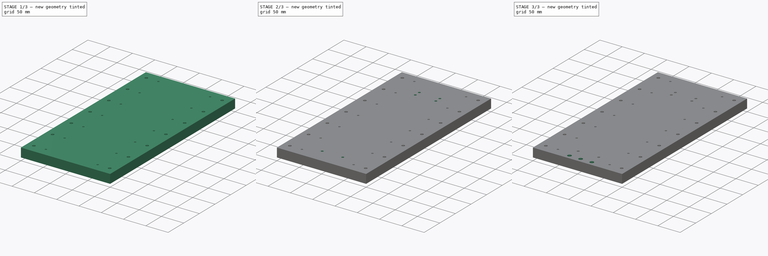
[diagram: build sequence overview — one tinted view per stage of 3, left to right]
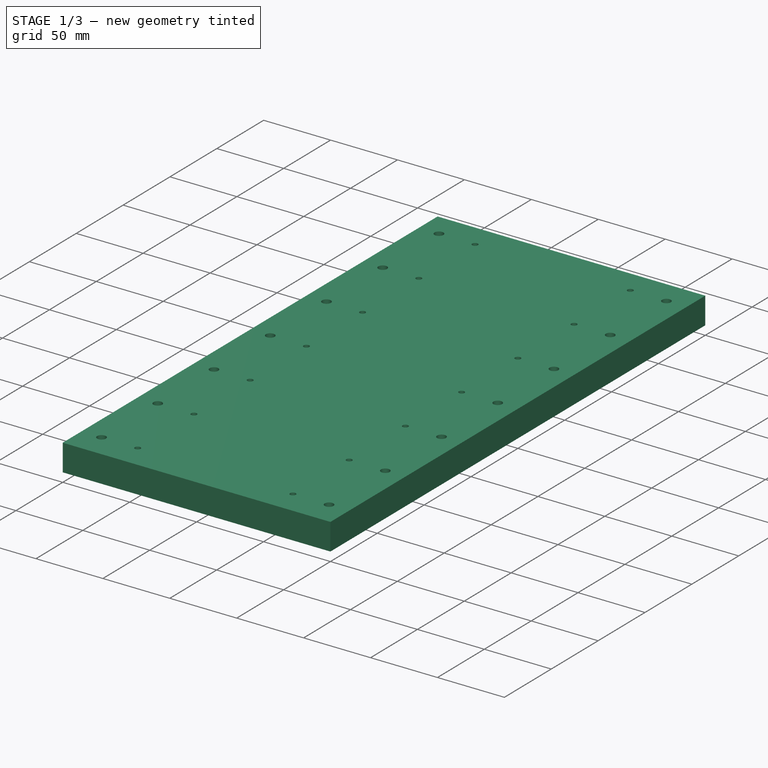
[diagram: stage 1 of 3 — iso view after this stage's code; geometry added in this stage tinted green]
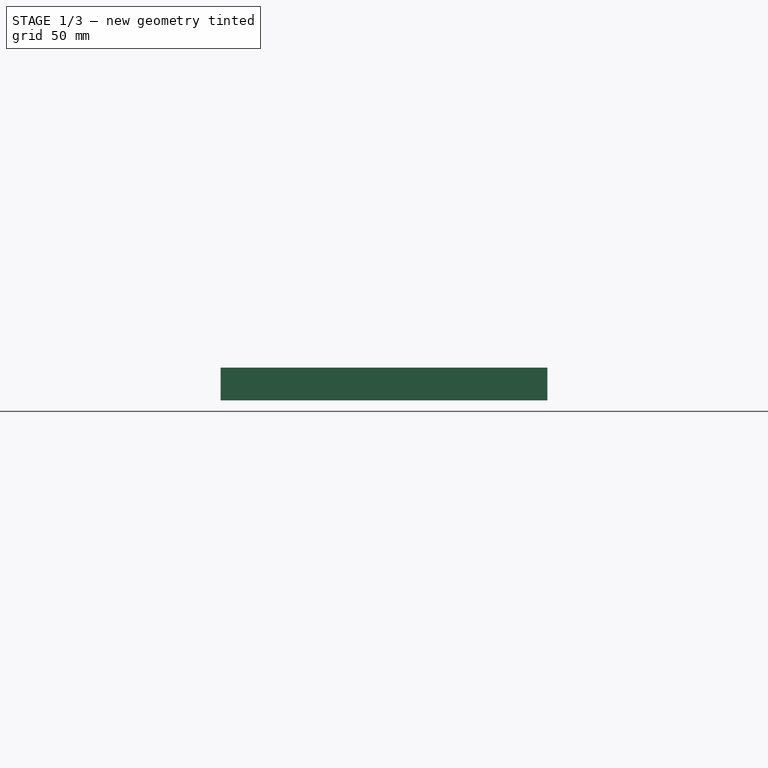
[diagram: stage 1 of 3 — front view after this stage's code; geometry added in this stage tinted green]
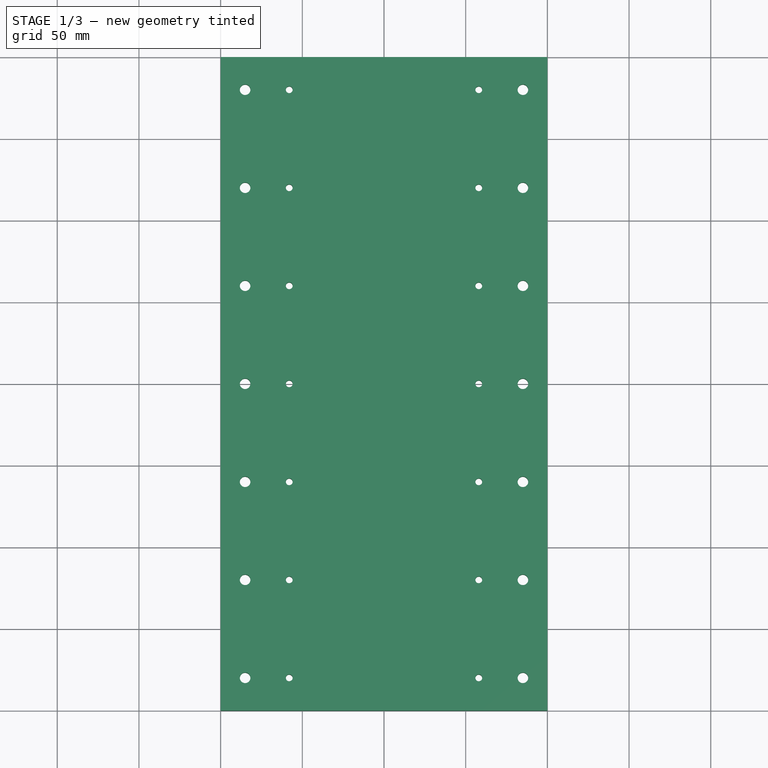
[diagram: stage 1 of 3 — top view after this stage's code; geometry added in this stage tinted green]
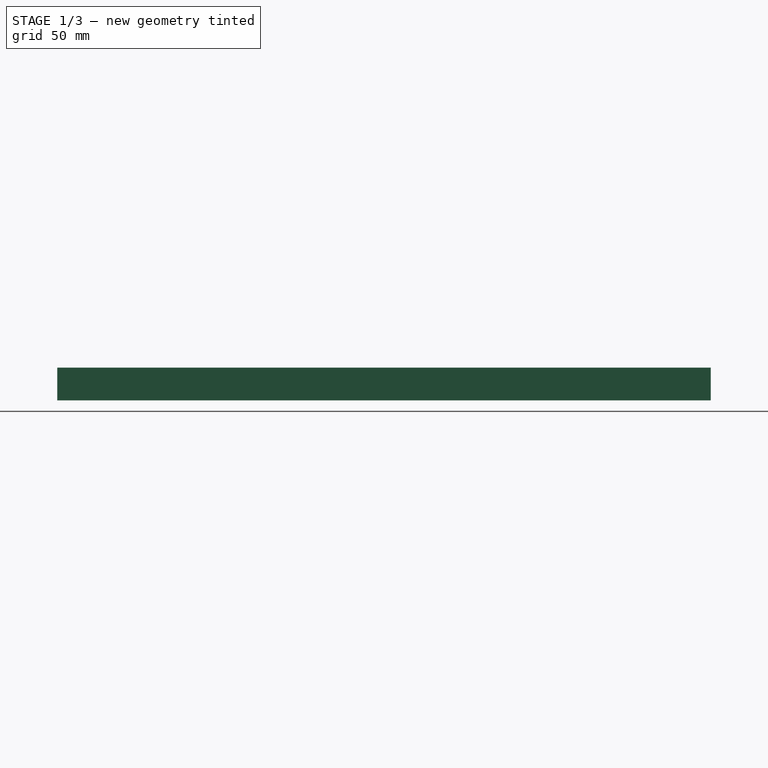
[diagram: stage 1 of 3 — right view after this stage's code; geometry added in this stage tinted green]
FCSTD DOCUMENT  (FreeCAD 0.17R9796 (Git))
Label: zschlitten
License: All rights reserved
LicenseURL: http://en.wikipedia.org/wiki/All_rights_reserved
objects: Sketcher::SketchObject×8, PartDesign::Pocket×7, PartDesign::Pad×1, PartDesign::Body×1
note: 25 computed .brp shape members not serialized (recipe doc carries the construction recipe); baked Part::Feature solids carry a one-line shape summary decoded from their .brp

FEATURE [Sketcher::SketchObject] Sketch
  MapMode = 5
  Support = -> [XY_Plane]
  sketch-geometry (4):
    g0: LineSegment StartX=0 StartY=400 StartZ=0 EndX=200 EndY=400 EndZ=0
    g1: LineSegment StartX=200 StartY=400 StartZ=0 EndX=200 EndY=0 EndZ=0
    g2: LineSegment StartX=200 StartY=0 StartZ=0 EndX=0 EndY=0 EndZ=0
    g3: LineSegment StartX=0 StartY=0 StartZ=0 EndX=0 EndY=400 EndZ=0
  constraints (11):
    c: Coincident(g0,g1)
    c: Coincident(g1,g2)
    c: Coincident(g2,g3)
    c: Coincident(g3,g0)
    c: Horizontal(g0)
    c: Horizontal(g2)
    c: Vertical(g1)
    c: Vertical(g3)
    c: Coincident(g2,g-1)
    c: DistanceY(g-1,g0) = 400
    c: DistanceX(g-1,g1) = 200
FEATURE [PartDesign::Pad] Pad
  Length = 20
  Length2 = 100
  Profile = -> Sketch
  Type = 0
FEATURE [Sketcher::SketchObject] Sketch001
  MapMode = 5
  Placement = pos=(0,0,20) rot=(0,0,1;0rad)
  Support = -> [Pad]
  sketch-geometry (14):
    g0: Circle CenterX=42 CenterY=380 CenterZ=0 NormalX=0 NormalY=0 NormalZ=1 Radius=2.1
    g1: Circle CenterX=42 CenterY=320 CenterZ=0 NormalX=0 NormalY=0 NormalZ=1 Radius=2.1
    g2: Circle CenterX=42 CenterY=260 CenterZ=0 NormalX=0 NormalY=0 NormalZ=1 Radius=2.1
    g3: Circle CenterX=42 CenterY=200 CenterZ=0 NormalX=0 NormalY=0 NormalZ=1 Radius=2.1
    g4: Circle CenterX=42 CenterY=140 CenterZ=0 NormalX=0 NormalY=0 NormalZ=1 Radius=2.1
    g5: Circle CenterX=42 CenterY=80 CenterZ=0 NormalX=0 NormalY=0 NormalZ=1 Radius=2.1
    g6: Circle CenterX=42 CenterY=20 CenterZ=0 NormalX=0 NormalY=0 NormalZ=1 Radius=2.1
    g7: Circle CenterX=158 CenterY=380 CenterZ=0 NormalX=0 NormalY=0 NormalZ=1 Radius=2.1
    g8: Circle CenterX=158 CenterY=320 CenterZ=0 NormalX=0 NormalY=0 NormalZ=1 Radius=2.1
    g9: Circle CenterX=158 CenterY=260 CenterZ=0 NormalX=0 NormalY=0 NormalZ=1 Radius=2.1
    g10: Circle CenterX=158 CenterY=200 CenterZ=0 NormalX=0 NormalY=0 NormalZ=1 Radius=2.1
    g11: Circle CenterX=158 CenterY=140 CenterZ=0 NormalX=0 NormalY=0 NormalZ=1 Radius=2.1
    g12: Circle CenterX=158 CenterY=80 CenterZ=0 NormalX=0 NormalY=0 NormalZ=1 Radius=2.1
    g13: Circle CenterX=158 CenterY=20 CenterZ=0 NormalX=0 NormalY=0 NormalZ=1 Radius=2.1
  constraints (37):
    c: DistanceX(g-1,g6) = 42
    c: DistanceY(g-1,g6) = 20
    c: DistanceY(g6,g13) = 0
    c: DistanceX(g-1,g13) = 158
    c: DistanceX(g5,g6) = 0
    c: DistanceX(g4,g5) = 0
    c: DistanceX(g3,g4) = 0
    c: DistanceX(g2,g3) = 0
    c: DistanceX(g1,g2) = 0
    c: DistanceX(g0,g1) = 0
    c: DistanceY(g-1,g5) = 80
    c: DistanceY(g-1,g4) = 140
    c: DistanceY(g-1,g3) = 200
    c: DistanceY(g-1,g2) = 260
    c: DistanceY(g-1,g1) = 320
    c: DistanceY(g-1,g0) = 380
    c: DistanceY(g5,g12) = 0
    c: DistanceY(g4,g11) = 0
    c: DistanceY(g3,g10) = 0
    c: DistanceY(g2,g9) = 0
    c: DistanceY(g1,g8) = 0
    c: DistanceY(g0,g7) = 0
    c: DistanceX(g12,g13) = 0
    c: DistanceX(g11,g12) = 0
    c: DistanceX(g10,g11) = 0
    c: DistanceX(g9,g10) = 0
    c: DistanceX(g8,g9) = 0
    c: DistanceX(g7,g8) = 0
    c: Radius(g0) = 2.1
    c: Equal(g0, g1-g6) x6
    c: Equal(g0,g13)
    c: Equal(g0,g12)
    c: Equal(g0,g11)
    c: Equal(g0,g10)
    c: Equal(g0,g9)
    c: Equal(g0,g8)
    c: Equal(g0,g7)
FEATURE [PartDesign::Pocket] Pocket
  BaseFeature = -> Pad
  Length = 20
  Profile = -> Sketch001
  Type = 0
FEATURE [Sketcher::SketchObject] Sketch002
  MapMode = 5
  Placement = pos=(0,0,20) rot=(0,0,1;0rad)
  Support = -> [Pocket]
  sketch-geometry (14):
    g0: Circle CenterX=15 CenterY=380 CenterZ=0 NormalX=0 NormalY=0 NormalZ=1 Radius=3.25
    g1: Circle CenterX=15 CenterY=320 CenterZ=0 NormalX=0 NormalY=0 NormalZ=1 Radius=3.25
    g2: Circle CenterX=15 CenterY=260 CenterZ=0 NormalX=0 NormalY=0 NormalZ=1 Radius=3.25
    g3: Circle CenterX=15 CenterY=200 CenterZ=0 NormalX=0 NormalY=0 NormalZ=1 Radius=3.25
    g4: Circle CenterX=15 CenterY=140 CenterZ=0 NormalX=0 NormalY=0 NormalZ=1 Radius=3.25
    g5: Circle CenterX=15 CenterY=80 CenterZ=0 NormalX=0 NormalY=0 NormalZ=1 Radius=3.25
    g6: Circle CenterX=15 CenterY=20 CenterZ=0 NormalX=0 NormalY=0 NormalZ=1 Radius=3.25
    g7: Circle CenterX=185 CenterY=380 CenterZ=0 NormalX=0 NormalY=0 NormalZ=1 Radius=3.25
    g8: Circle CenterX=185 CenterY=320 CenterZ=0 NormalX=0 NormalY=0 NormalZ=1 Radius=3.25
    g9: Circle CenterX=185 CenterY=260 CenterZ=0 NormalX=0 NormalY=0 NormalZ=1 Radius=3.25
    g10: Circle CenterX=185 CenterY=200 CenterZ=0 NormalX=0 NormalY=0 NormalZ=1 Radius=3.25
    g11: Circle CenterX=185 CenterY=140 CenterZ=0 NormalX=0 NormalY=0 NormalZ=1 Radius=3.25
    g12: Circle CenterX=185 CenterY=80 CenterZ=0 NormalX=0 NormalY=0 NormalZ=1 Radius=3.25
    g13: Circle CenterX=185 CenterY=20 CenterZ=0 NormalX=0 NormalY=0 NormalZ=1 Radius=3.25
  constraints (37):
    c: DistanceY(g-1,g6) = 20
    c: DistanceX(g-1,g6) = 15
    c: DistanceY(g6,g13) = 0
    c: DistanceX(g-1,g13) = 185
    c: DistanceX(g5,g6) = 0
    c: DistanceX(g4,g5) = 0
    c: DistanceX(g3,g4) = 0
    c: DistanceX(g2,g3) = 0
    c: DistanceX(g1,g2) = 0
    c: DistanceX(g0,g1) = 0
    c: DistanceX(g12,g13) = 0
    c: DistanceX(g11,g12) = 0
    c: DistanceX(g10,g11) = 0
    c: DistanceX(g9,g10) = 0
    c: DistanceX(g8,g9) = 0
    c: DistanceX(g7,g8) = 0
    c: DistanceY(g-1,g5) = 80
    c: DistanceY(g-1,g4) = 140
    c: DistanceY(g-1,g3) = 200
    c: DistanceY(g-1,g2) = 260
    c: DistanceY(g-1,g1) = 320
    c: DistanceY(g-1,g0) = 380
    c: DistanceY(g5,g12) = 0
    c: DistanceY(g4,g11) = 0
    c: DistanceY(g3,g10) = 0
    c: DistanceY(g2,g9) = 0
    c: DistanceY(g1,g8) = 0
    c: DistanceY(g0,g7) = 0
    c: Radius(g0) = 3.25
    c: Equal(g0, g1-g6) x6
    c: Equal(g0,g13)
    c: Equal(g0,g12)
    c: Equal(g0,g11)
    c: Equal(g0,g10)
    c: Equal(g0,g9)
    c: Equal(g0,g8)
    c: Equal(g0,g7)
FEATURE [PartDesign::Pocket] Pocket001
  BaseFeature = -> Pocket
  Length = 20
  Profile = -> Sketch002
  Type = 0
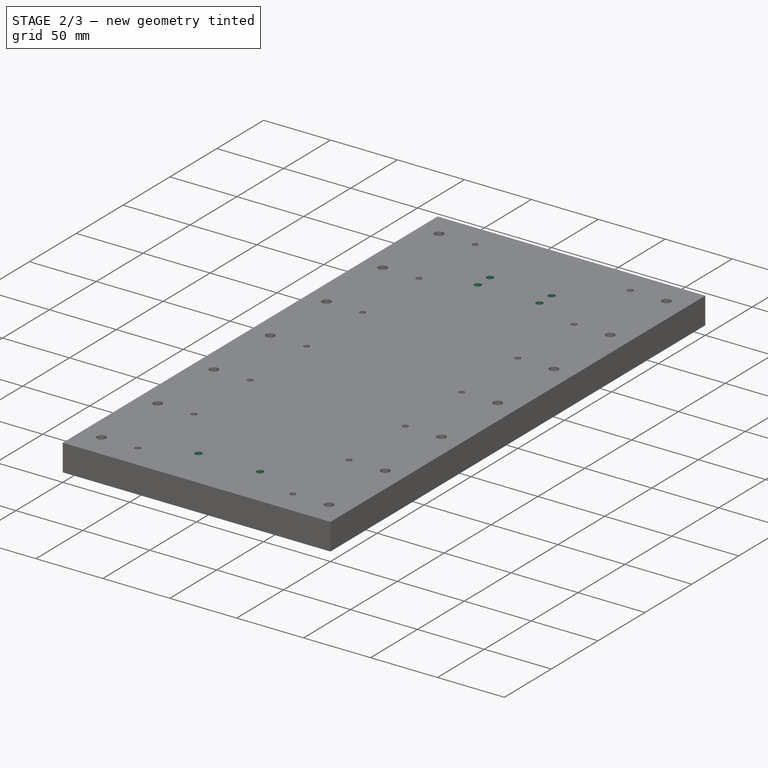
[diagram: stage 2 of 3 — iso view after this stage's code; geometry added in this stage tinted green]
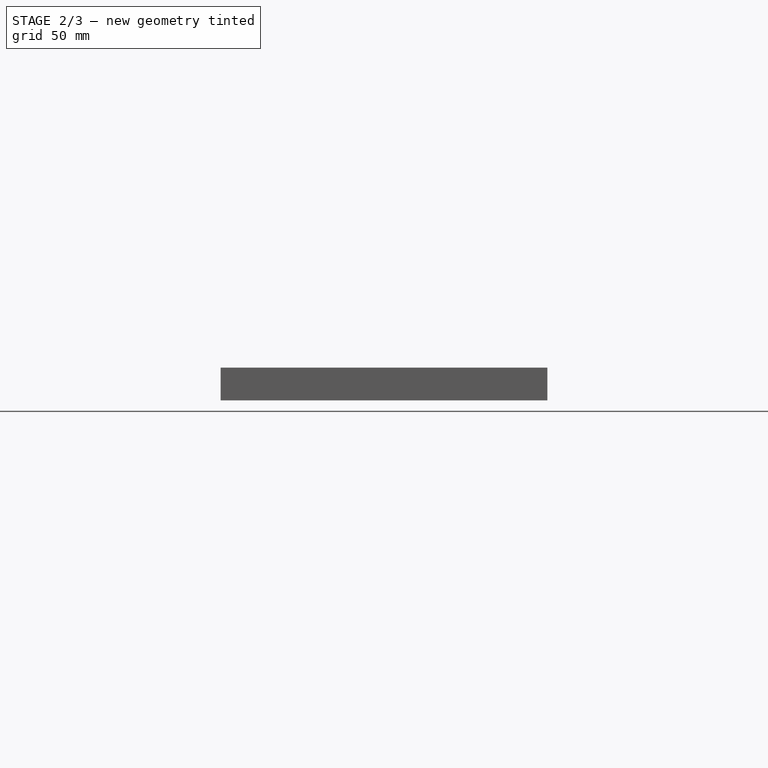
[diagram: stage 2 of 3 — front view after this stage's code; geometry added in this stage tinted green]
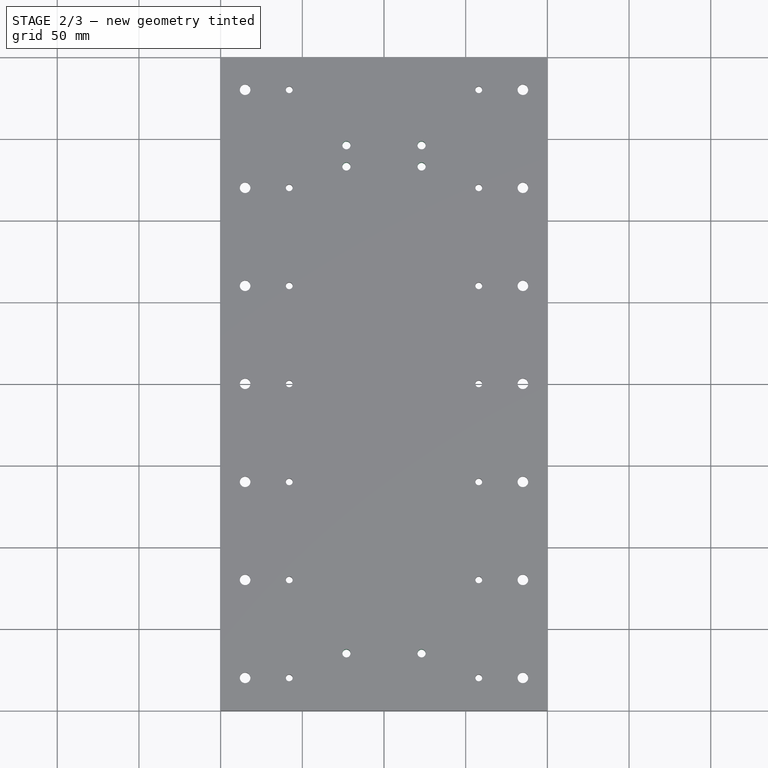
[diagram: stage 2 of 3 — top view after this stage's code; geometry added in this stage tinted green]
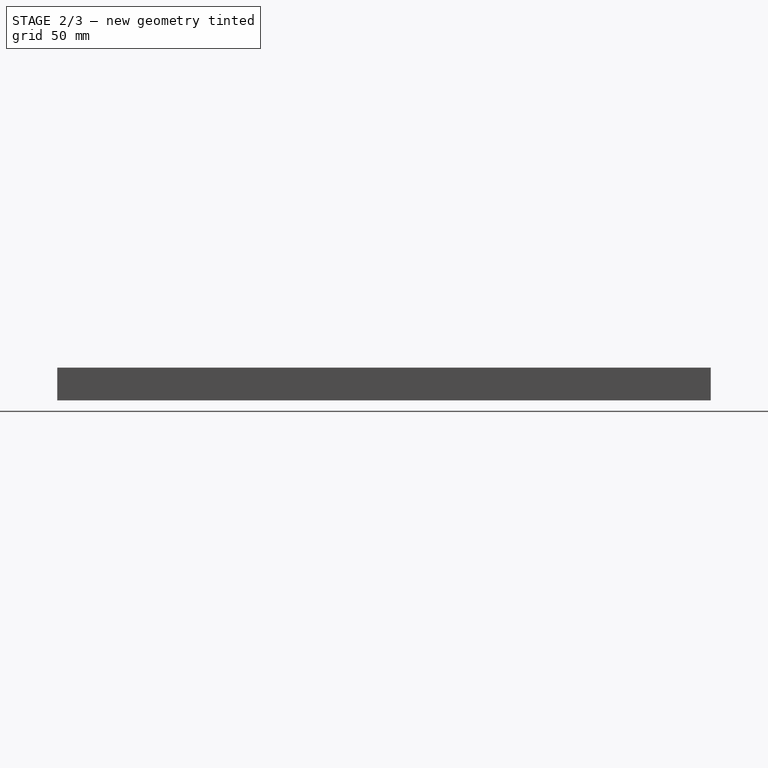
[diagram: stage 2 of 3 — right view after this stage's code; geometry added in this stage tinted green]
FEATURE [Sketcher::SketchObject] Sketch003
  MapMode = 5
  Placement = pos=(0,0,0) rot=(1,0,0;3.14159rad)
  Support = -> [Pocket001]
  sketch-geometry (14):
    g0: Circle CenterX=15 CenterY=-20 CenterZ=0 NormalX=0 NormalY=0 NormalZ=1 Radius=5.2
    g1: Circle CenterX=15 CenterY=-80 CenterZ=0 NormalX=0 NormalY=0 NormalZ=1 Radius=5.2
    g2: Circle CenterX=15 CenterY=-140 CenterZ=0 NormalX=0 NormalY=0 NormalZ=1 Radius=5.2
    g3: Circle CenterX=15 CenterY=-200 CenterZ=0 NormalX=0 NormalY=0 NormalZ=1 Radius=5.2
    g4: Circle CenterX=15 CenterY=-260 CenterZ=0 NormalX=0 NormalY=0 NormalZ=1 Radius=5.2
    g5: Circle CenterX=15 CenterY=-320 CenterZ=0 NormalX=0 NormalY=0 NormalZ=1 Radius=5.2
    g6: Circle CenterX=185 CenterY=-20 CenterZ=0 NormalX=0 NormalY=0 NormalZ=1 Radius=5.2
    g7: Circle CenterX=185 CenterY=-80 CenterZ=0 NormalX=0 NormalY=0 NormalZ=1 Radius=5.2
    g8: Circle CenterX=185 CenterY=-140 CenterZ=0 NormalX=0 NormalY=0 NormalZ=1 Radius=5.2
    g9: Circle CenterX=185 CenterY=-200 CenterZ=0 NormalX=0 NormalY=0 NormalZ=1 Radius=5.2
    g10: Circle CenterX=185 CenterY=-260 CenterZ=0 NormalX=0 NormalY=0 NormalZ=1 Radius=5.2
    g11: Circle CenterX=185 CenterY=-320 CenterZ=0 NormalX=0 NormalY=0 NormalZ=1 Radius=5.2
    g12: Circle CenterX=185 CenterY=-380 CenterZ=0 NormalX=0 NormalY=0 NormalZ=1 Radius=5.2
    g13: Circle CenterX=15 CenterY=-380 CenterZ=0 NormalX=0 NormalY=0 NormalZ=1 Radius=5.2
  constraints (37):
    c: DistanceY(g0,g-1) = 20
    c: DistanceY(g0,g6) = 0
    c: DistanceX(g-1,g0) = 15
    c: DistanceX(g-1,g6) = 185
    c: DistanceX(g0,g1) = 0
    c: DistanceX(g1,g2) = 0
    c: DistanceX(g2,g3) = 0
    c: DistanceX(g4,g5) = 0
    c: DistanceX(g7,g6) = 0
    c: DistanceX(g8,g7) = 0
    c: DistanceX(g9,g8) = 0
    c: DistanceX(g10,g9) = 0
    c: DistanceX(g11,g10) = 0
    c: DistanceX(g12,g11) = 0
    c: DistanceY(g1,g-1) = 80
    c: DistanceY(g2,g-1) = 140
    c: DistanceY(g3,g-1) = 200
    c: DistanceY(g4,g-1) = 260
    c: DistanceY(g5,g-1) = 320
    c: DistanceX(g13,g5) = 0
    c: DistanceY(g13,g-1) = 380
    c: DistanceY(g1,g7) = 0
    c: DistanceY(g2,g8) = 0
    c: DistanceY(g3,g9) = 0
    c: DistanceY(g4,g10) = 0
    c: DistanceY(g5,g11) = 0
    c: DistanceY(g13,g12) = 0
    c: Radius(g0) = 5.2
    c: Equal(g0, g1-g5) x5
    c: Equal(g0,g13)
    c: Equal(g0,g12)
    c: Equal(g0,g11)
    c: Equal(g0,g10)
    c: Equal(g0,g9)
    c: Equal(g0,g8)
    c: Equal(g0,g7)
    c: Equal(g0,g6)
FEATURE [PartDesign::Pocket] Pocket002
  BaseFeature = -> Pocket001
  Length = 7
  Profile = -> Sketch003
  Type = 0
FEATURE [Sketcher::SketchObject] Sketch004
  MapMode = 5
  Placement = pos=(0,0,20) rot=(0,0,1;0rad)
  Support = -> [Pocket002]
  sketch-geometry (6):
    g0: Circle CenterX=77 CenterY=346 CenterZ=0 NormalX=0 NormalY=0 NormalZ=1 Radius=2.5
    g1: Circle CenterX=123 CenterY=346 CenterZ=0 NormalX=0 NormalY=0 NormalZ=1 Radius=2.5
    g2: Circle CenterX=77 CenterY=333 CenterZ=0 NormalX=0 NormalY=0 NormalZ=1 Radius=2.5
    g3: Circle CenterX=123 CenterY=333 CenterZ=0 NormalX=0 NormalY=0 NormalZ=1 Radius=2.5
    g4: Circle CenterX=77 CenterY=35 CenterZ=0 NormalX=0 NormalY=0 NormalZ=1 Radius=2.5
    g5: Circle CenterX=123 CenterY=35 CenterZ=0 NormalX=0 NormalY=0 NormalZ=1 Radius=2.5
  constraints (18):
    c: DistanceX(g-1,g2) = 77
    c: DistanceX(g0,g2) = 0
    c: DistanceY(g-1,g2) = 333
    c: DistanceY(g2,g0) = 13
    c: DistanceY(g0,g1) = 0
    c: DistanceY(g3,g2) = 0
    c: DistanceX(g0,g1) = 46
    c: DistanceX(g3,g1) = 0
    c: Radius(g0) = 2.5
    c: Equal(g0,g2)
    c: Equal(g0,g1)
    c: Equal(g0,g3)
    c: DistanceX(g-1,g4) = 77
    c: DistanceY(g4,g5) = 0
    c: DistanceY(g-1,g4) = 35
    c: DistanceX(g4,g5) = 46
    c: Radius(g4) = 2.5
    c: Equal(g4,g5)
FEATURE [PartDesign::Pocket] Pocket003
  BaseFeature = -> Pocket002
  Length = 20
  Profile = -> Sketch004
  Type = 0
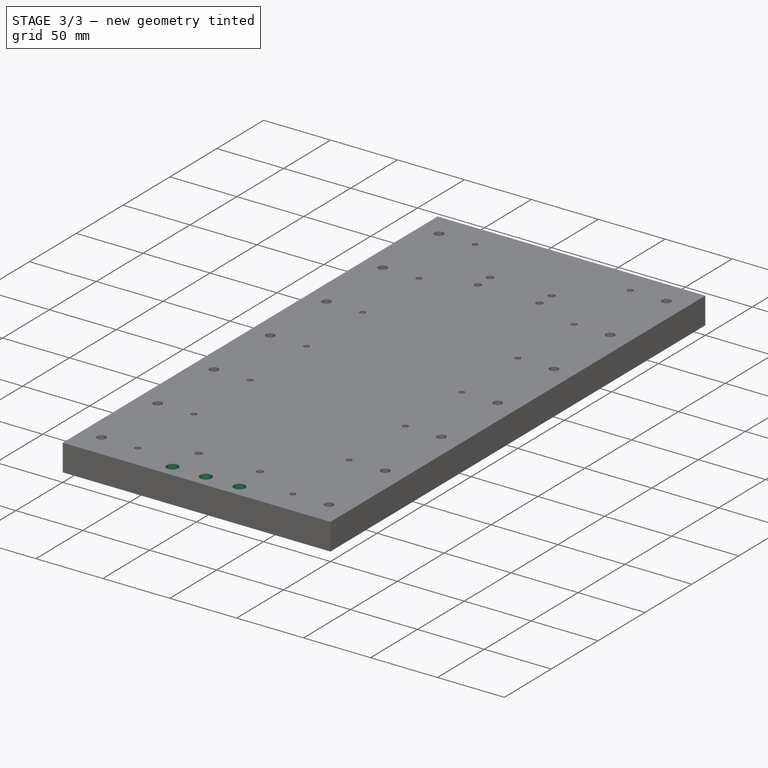
[diagram: stage 3 of 3 — iso view after this stage's code; geometry added in this stage tinted green]
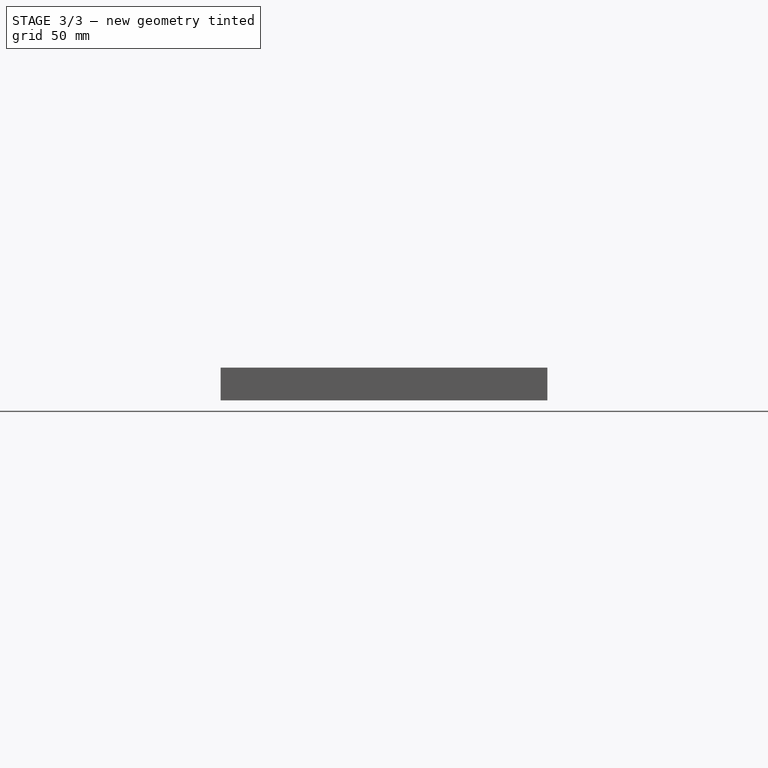
[diagram: stage 3 of 3 — front view after this stage's code; geometry added in this stage tinted green]
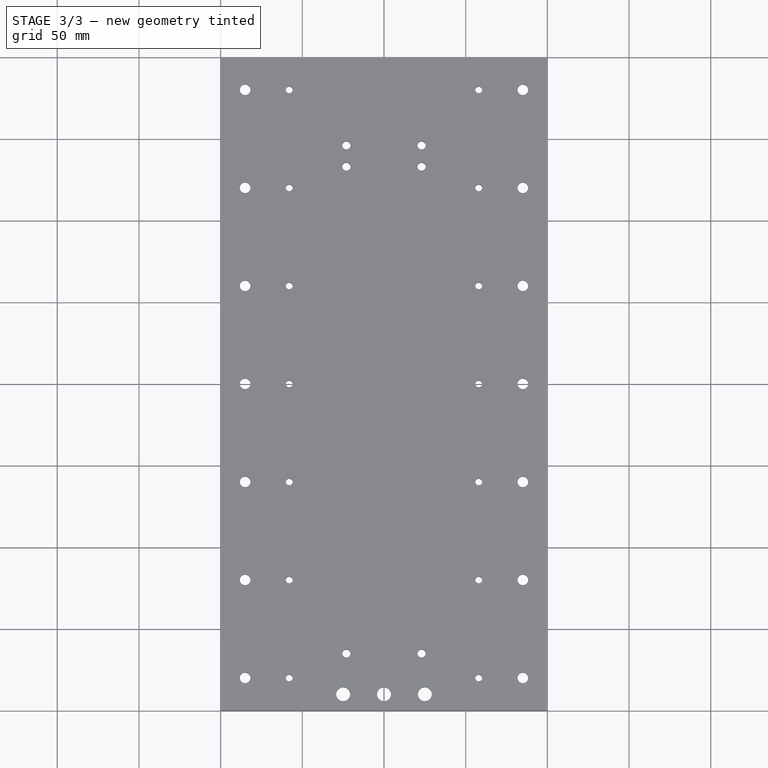
[diagram: stage 3 of 3 — top view after this stage's code; geometry added in this stage tinted green]
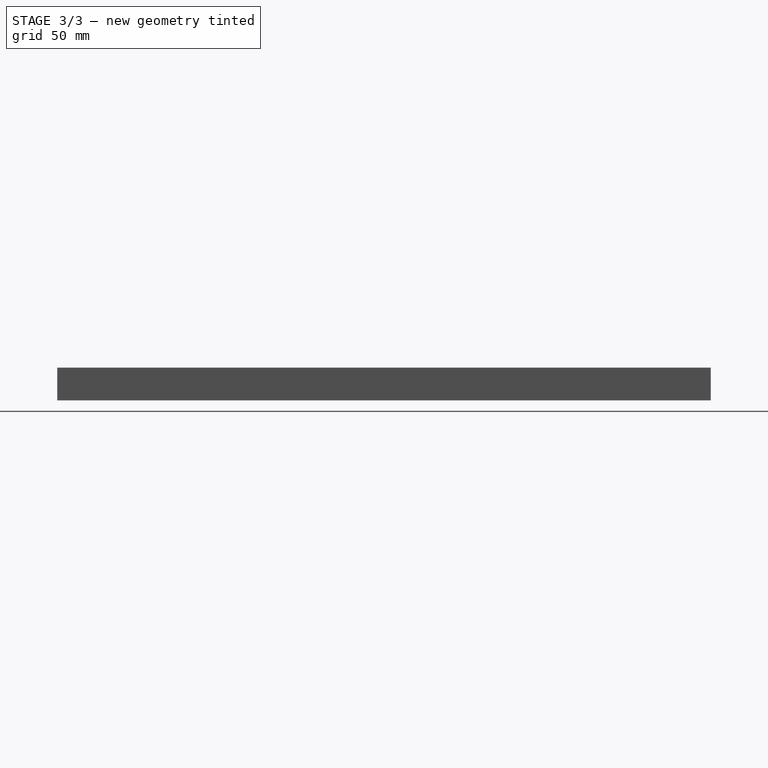
[diagram: stage 3 of 3 — right view after this stage's code; geometry added in this stage tinted green]
FEATURE [Sketcher::SketchObject] Sketch005
  MapMode = 5
  Placement = pos=(0,400,0) rot=(0,0.707107,0.707107;3.14159rad)
  Support = -> [Pocket003]
  sketch-geometry (4):
    g0: Circle CenterX=-170 CenterY=10 CenterZ=0 NormalX=0 NormalY=0 NormalZ=1 Radius=2.5
    g1: Circle CenterX=-123.33 CenterY=10 CenterZ=0 NormalX=0 NormalY=0 NormalZ=1 Radius=2.5
    g2: Circle CenterX=-76.67 CenterY=10 CenterZ=0 NormalX=0 NormalY=0 NormalZ=1 Radius=2.5
    g3: Circle CenterX=-30 CenterY=10 CenterZ=0 NormalX=0 NormalY=0 NormalZ=1 Radius=2.5
  constraints (12):
    c: DistanceY(g-1,g3) = 10
    c: DistanceX(g3,g-1) = 30
    c: DistanceX(g2,g-1) = 76.67
    c: DistanceX(g1,g-1) = 123.33
    c: DistanceX(g0,g-1) = 170
    c: DistanceY(g3,g2) = 0
    c: DistanceY(g2,g1) = 0
    c: DistanceY(g1,g0) = 0
    c: Radius(g0) = 2.5
    c: Equal(g0,g1)
    c: Equal(g0,g2)
    c: Equal(g0,g3)
FEATURE [PartDesign::Pocket] Pocket004
  BaseFeature = -> Pocket003
  Length = 20
  Profile = -> Sketch005
  Type = 0
FEATURE [Sketcher::SketchObject] Sketch006
  MapMode = 5
  Placement = pos=(0,0,20) rot=(0,0,1;0rad)
  Support = -> [Pocket004]
  sketch-geometry (3):
    g0: Circle CenterX=75 CenterY=10 CenterZ=0 NormalX=0 NormalY=0 NormalZ=1 Radius=4.25
    g1: Circle CenterX=100 CenterY=10 CenterZ=0 NormalX=0 NormalY=0 NormalZ=1 Radius=4.25
    g2: Circle CenterX=125 CenterY=10 CenterZ=0 NormalX=0 NormalY=0 NormalZ=1 Radius=4.25
  constraints (9):
    c: DistanceX(g-1,g1) = 100
    c: DistanceX(g0,g1) = 25
    c: DistanceX(g1,g2) = 25
    c: DistanceY(g-1,g0) = 10
    c: DistanceY(g0,g1) = 0
    c: DistanceY(g1,g2) = 0
    c: Radius(g0) = 4.25
    c: Equal(g0,g1)
    c: Equal(g0,g2)
FEATURE [PartDesign::Pocket] Pocket005
  BaseFeature = -> Pocket004
  Length = 20
  Profile = -> Sketch006
  Type = 0
FEATURE [Sketcher::SketchObject] Sketch007
  MapMode = 5
  Placement = pos=(0,0,0) rot=(1,0,0;3.14159rad)
  Support = -> [Pocket005]
  sketch-geometry (3):
    g0: Circle CenterX=75 CenterY=-10 CenterZ=0 NormalX=0 NormalY=0 NormalZ=1 Radius=7.5
    g1: Circle CenterX=100 CenterY=-10 CenterZ=0 NormalX=0 NormalY=0 NormalZ=1 Radius=7.5
    g2: Circle CenterX=125 CenterY=-10 CenterZ=0 NormalX=0 NormalY=0 NormalZ=1 Radius=7.5
  constraints (9):
    c: DistanceX(g-1,g0) = 75
    c: DistanceX(g0,g1) = 25
    c: DistanceX(g1,g2) = 25
    c: DistanceY(g1,g0) = 0
    c: DistanceY(g2,g1) = 0
    c: DistanceY(g0,g-1) = 10
    c: Radius(g0) = 7.5
    c: Equal(g0,g1)
    c: Equal(g0,g2)
FEATURE [PartDesign::Pocket] Pocket006
  BaseFeature = -> Pocket005
  Length = 9
  Profile = -> Sketch007
  Type = 0
FEATURE [PartDesign::Body] Body
  Group = -> [Sketch,Pad,Sketch001,Pocket,Sketch002,Pocket001,Sketch003,Pocket002,Sketch004,Pocket003,Sketch005,Pocket004,Sketch006,Pocket005,Sketch007,Pocket006]
  Origin = -> BodyOrigin
  Tip = -> Pocket006
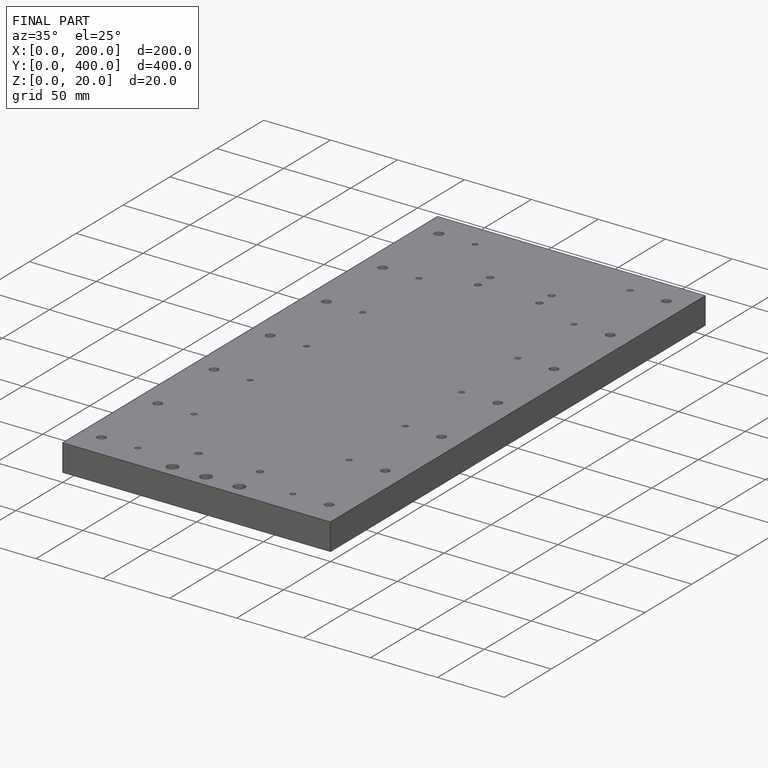
[diagram: finished part — iso view with bounding-box wireframe]
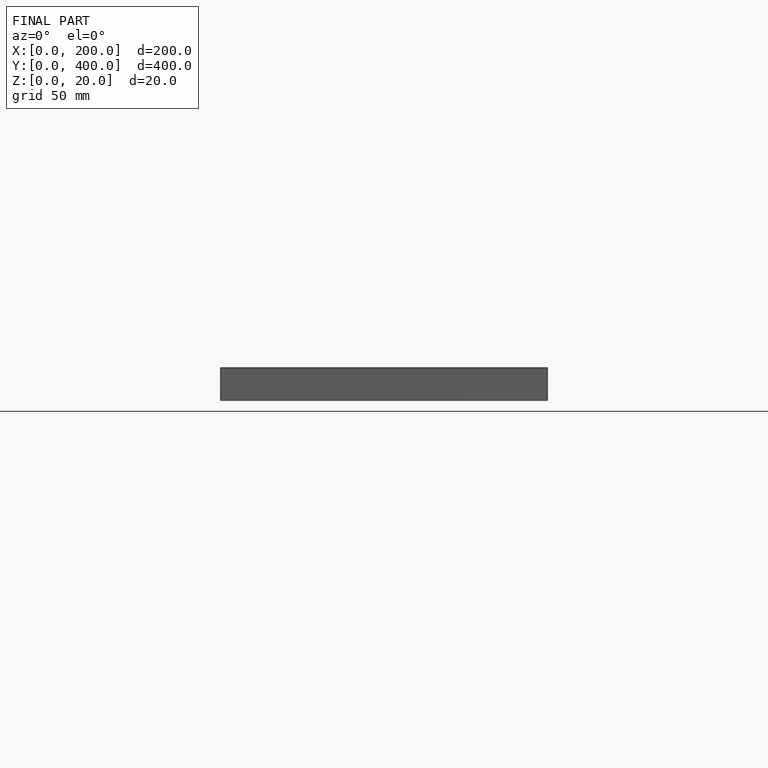
[diagram: finished part — front view with bounding-box wireframe]
